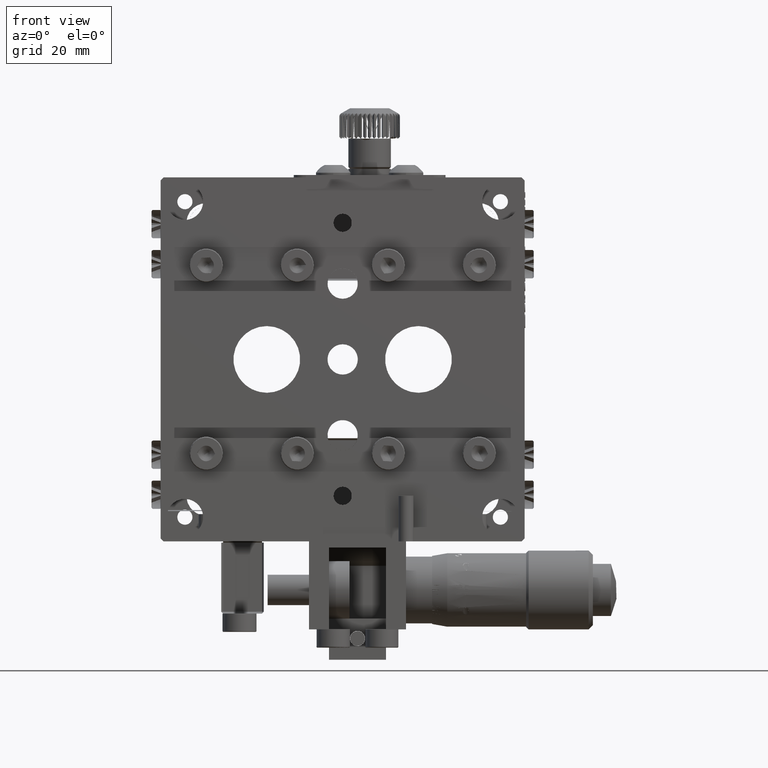
[diagram: clean part render]
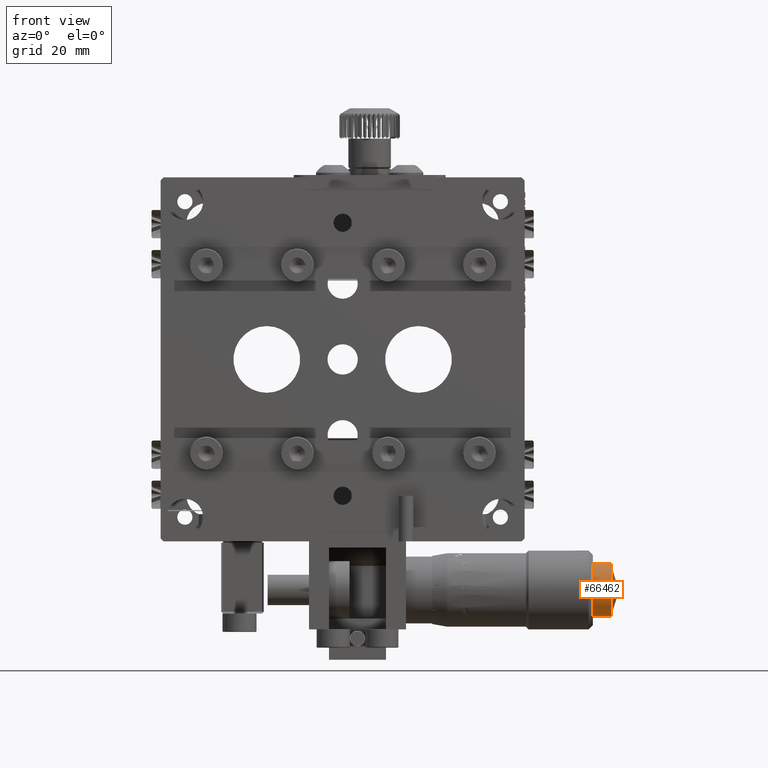
[diagram: same view with one face highlighted and labeled with its STEP entity id]
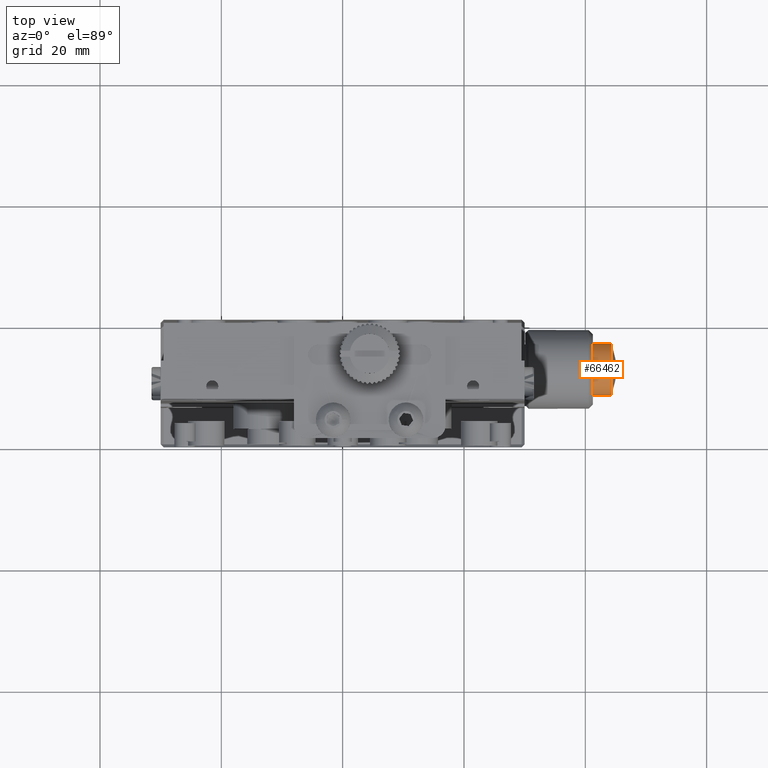
[diagram: same view with one face highlighted and labeled with its STEP entity id]
A machine part, front view. The second image highlights one B-rep face of the part: STEP entity #66462.
A second angle (top view) of the same face is appended — the face is thin or edge-on in the first view.
In plain terms, the highlighted cylindrical surface (bore or boss wall) has radius 4.3 mm, axis along (1, 0, 0).
Its self-contained STEP definition (entity closure, byte-faithful):
#124 = CARTESIAN_POINT ( 'NONE',  ( 44.22112591099850931, 10.35744726046766573, -41.43856982131278244 ) ) ;
#231 = ORIENTED_EDGE ( 'NONE', *, *, #65386, .T. ) ;
#350 = CARTESIAN_POINT ( 'NONE',  ( 41.24999999999999289, 15.04445347025360569, -41.78781594152516021 ) ) ;
#426 = B_SPLINE_CURVE_WITH_KNOTS ( 'NONE', 3,
 ( #42629, #9666, #36137, #62609, #3147, #10087, #76956, #63043, #3572, #30055, #23549, #43482, #10521, #36981, #63462, #3999, #77384, #24822, #58642, #25661, #57786, #5269, #19156, #52123, #71274, #72130, #85162, #18726, #12216, #17885, #32606, #17451, #18304, #71701, #78643, #44342, #51701, #45184, #59064, #85581, #65171, #38697, #24390, #65590, #70842, #43912, #31768, #45612, #5698, #4421, #83894, #32183, #64320, #50849, #11369, #11793, #70408, #12640 ),
 .UNSPECIFIED., .F., .F.,
 ( 4, 1, 1, 1, 2, 2, 1, 2, 2, 2, 1, 2, 2, 1, 1, 1, 2, 2, 2, 1, 1, 1, 2, 2, 1, 2, 2, 2, 1, 2, 2, 1, 1, 1, 2, 2, 4 ),
 ( 0.000000000000000000, 0.06250000000000491274, 0.09375000000000742462, 0.1093750000000084516, 0.1171875000000092287, 0.1250000000000099920, 0.1562500000000114631, 0.1718750000000122402, 0.1875000000000129896, 0.2500000000000151545, 0.2812500000000163758, 0.2968750000000168754, 0.3125000000000173750, 0.3437500000000185962, 0.3593750000000185962, 0.3671875000000185962, 0.3710937500000178746, 0.3750000000000172085, 0.5000000000000273115, 0.5625000000000316414, 0.5937500000000345279, 0.6093750000000368594, 0.6171875000000374145, 0.6250000000000378586, 0.6562500000000357492, 0.6718750000000340838, 0.6875000000000324185, 0.7500000000000246470, 0.7812500000000208722, 0.7968750000000194289, 0.8125000000000179856, 0.8437500000000154321, 0.8593750000000139888, 0.8671875000000134337, 0.8710937500000132117, 0.8750000000000128786, 1.000000000000000000 ),
 .UNSPECIFIED. ) ;
#769 = CARTESIAN_POINT ( 'NONE',  ( 41.25000000000000000, 16.94475709889264081, -39.71761870351404866 ) ) ;
#1635 = CARTESIAN_POINT ( 'NONE',  ( 41.25000000000000000, 15.60092209792028406, -34.56291542789470128 ) ) ;
#1881 = VERTEX_POINT ( 'NONE', #24337 ) ;
#2366 = ORIENTED_EDGE ( 'NONE', *, *, #78500, .T. ) ;
#3147 = CARTESIAN_POINT ( 'NONE',  ( 41.25000000000000711, 11.64079645630259918, -42.08064614067041020 ) ) ;
#3572 = CARTESIAN_POINT ( 'NONE',  ( 41.24999999999999289, 11.28238129684543978, -41.94475709912777006 ) ) ;
#3999 = CARTESIAN_POINT ( 'NONE',  ( 41.24999999999999289, 9.854710437254089683, -40.93588473557072405 ) ) ;
#4378 = CARTESIAN_POINT ( 'NONE',  ( 44.22112591099850931, 8.699996999999925151, -38.00000000000000711 ) ) ;
#4421 = CARTESIAN_POINT ( 'NONE',  ( 41.24999999999999289, 10.95554652972295173, -34.21218405848586741 ) ) ;
#4569 = CARTESIAN_POINT ( 'NONE',  ( 41.24999999999999289, 13.00000000000000888, -42.30000300000010327 ) ) ;
#4810 = CARTESIAN_POINT ( 'NONE',  ( 44.22112591099850931, 8.699996999999928704, -37.43713092353274874 ) ) ;
#5269 = CARTESIAN_POINT ( 'NONE',  ( 41.25000000000000000, 9.212184089970296696, -40.04445351840098510 ) ) ;
#5698 = CARTESIAN_POINT ( 'NONE',  ( 41.24999999999999289, 10.76829682320620662, -34.32157017765944573 ) ) ;
#6668 = CARTESIAN_POINT ( 'NONE',  ( 44.22112591099850931, 13.00000000000000888, -42.30000300000010327 ) ) ;
#6873 = CARTESIAN_POINT ( 'NONE',  ( 41.24999999999999289, 16.43708457209906371, -40.60092209792756535 ) ) ;
#7291 = CARTESIAN_POINT ( 'NONE',  ( 41.25000000000000000, 17.08069688642026307, -39.35907527924214833 ) ) ;
#7717 = CARTESIAN_POINT ( 'NONE',  ( 41.25000000000000000, 16.85487940077377544, -39.91500086782239975 ) ) ;
#8156 = CARTESIAN_POINT ( 'NONE',  ( 41.24999999999999289, 14.54910576846344483, -33.98857366986610629 ) ) ;
#8331 = EDGE_LOOP ( 'NONE', ( #2366, #231, #71102, #28490 ) ) ;
#8583 = CARTESIAN_POINT ( 'NONE',  ( 41.25000000000000000, 17.02287463318145555, -39.51910175636555778 ) ) ;
#9666 = CARTESIAN_POINT ( 'NONE',  ( 41.25000000000000000, 12.72676656590774691, -42.30000300000010327 ) ) ;
#10087 = CARTESIAN_POINT ( 'NONE',  ( 41.24999999999998579, 11.54474475924240018, -42.04644534002223111 ) ) ;
#10521 = CARTESIAN_POINT ( 'NONE',  ( 41.24999999999999289, 10.70897604800254577, -41.63958286851047319 ) ) ;
#11369 = CARTESIAN_POINT ( 'NONE',  ( 41.24999999999998579, 11.40131590361122527, -34.00819731848459071 ) ) ;
#11789 = CARTESIAN_POINT ( 'NONE',  ( 44.22112591099850931, 16.43856982131278244, -40.64255273953235559 ) ) ;
#11793 = CARTESIAN_POINT ( 'NONE',  ( 41.24999999999998579, 11.92521535623813556, -33.80063383868879612 ) ) ;
#12212 = CARTESIAN_POINT ( 'NONE',  ( 44.22112591099850931, 16.75728409128255336, -40.16556312645185756 ) ) ;
#12216 = CARTESIAN_POINT ( 'NONE',  ( 41.24999999999999289, 8.700129560329772360, -38.54613181000404154 ) ) ;
#12640 = CARTESIAN_POINT ( 'NONE',  ( 41.24999999999999289, 13.00000000000000888, -33.69999699999993226 ) ) ;
#12976 = CARTESIAN_POINT ( 'NONE',  ( 41.24999999999999289, 14.13353547290549983, -33.84780735682424080 ) ) ;
#13400 = CARTESIAN_POINT ( 'NONE',  ( 41.24999999999999289, 16.14528956274296334, -35.06411526442438742 ) ) ;
#13826 = CARTESIAN_POINT ( 'NONE',  ( 41.24999999999998579, 16.67842980434533473, -35.76829679570089837 ) ) ;
#14247 = CARTESIAN_POINT ( 'NONE',  ( 41.24999999999999289, 16.42891601246495981, -35.40417546215821432 ) ) ;
#14677 = CARTESIAN_POINT ( 'NONE',  ( 41.24999999999998579, 16.99180683453524665, -36.40132638811662957 ) ) ;
#15115 = CARTESIAN_POINT ( 'NONE',  ( 41.25000000000000000, 16.29365101558377305, -35.22856738546423117 ) ) ;
#17406 = CARTESIAN_POINT ( 'NONE',  ( 44.22112591099850931, 12.43713092353274519, -33.69999699999993936 ) ) ;
#17451 = CARTESIAN_POINT ( 'NONE',  ( 41.24999999999998579, 8.847720364107818369, -36.86668440901974719 ) ) ;
#17885 = CARTESIAN_POINT ( 'NONE',  ( 41.24999999999999289, 8.699930719834997106, -37.72693409499765238 ) ) ;
#18304 = CARTESIAN_POINT ( 'NONE',  ( 41.24999999999999289, 8.919303113578417097, -36.64092472076200124 ) ) ;
#18726 = CARTESIAN_POINT ( 'NONE',  ( 41.24999999999998579, 8.800766735328172885, -39.07512014793156396 ) ) ;
#19156 = CARTESIAN_POINT ( 'NONE',  ( 41.25000000000000000, 9.101426093932975192, -39.81672209055708578 ) ) ;
#19675 = CARTESIAN_POINT ( 'NONE',  ( 44.22112591099851642, 11.87448331201142615, -42.18808543159188673 ) ) ;
#19908 = CARTESIAN_POINT ( 'NONE',  ( 41.25000000000000000, 15.47627338545632369, -41.51618235350504449 ) ) ;
#20001 = CARTESIAN_POINT ( 'NONE',  ( 44.22112591099850931, 17.30000300000008906, -38.56286907646727968 ) ) ;
#20328 = CARTESIAN_POINT ( 'NONE',  ( 41.25000000000000000, 16.97076247596865528, -36.34975195794117298 ) ) ;
#20779 = EDGE_CURVE ( 'NONE', #80279, #47230, #37412, .T. ) ;
#21186 = CARTESIAN_POINT ( 'NONE',  ( 41.24999999999998579, 16.24991437011523843, -40.83110471578395817 ) ) ;
#21619 = CARTESIAN_POINT ( 'NONE',  ( 41.24999999999999289, 15.41365378338774939, -41.55940990266691415 ) ) ;
#23549 = CARTESIAN_POINT ( 'NONE',  ( 41.25000000000001421, 10.89486700515655215, -41.75018977214149629 ) ) ;
#23555 = CARTESIAN_POINT ( 'NONE',  ( 44.22112591099850931, 13.00000000000000888, -33.69999699999993226 ) ) ;
#23680 = CARTESIAN_POINT ( 'NONE',  ( 44.22112591099850931, 17.30000300000008906, -37.43713092353274874 ) ) ;
#24337 = CARTESIAN_POINT ( 'NONE',  ( 44.22112591099850931, 8.699996999999925151, -38.00000000000000711 ) ) ;
#24390 = CARTESIAN_POINT ( 'NONE',  ( 41.24999999999998579, 9.750085629885420602, -35.16889528421059907 ) ) ;
#24822 = CARTESIAN_POINT ( 'NONE',  ( 41.25000000000000711, 9.571083987531006088, -40.59582453783505684 ) ) ;
#25081 = DIRECTION ( 'NONE',  ( 0.000000000000000000, 0.000000000000000000, -1.000000000000000000 ) ) ;
#25661 = CARTESIAN_POINT ( 'NONE',  ( 41.24999999999999289, 9.440590088334406715, -40.41365376963137379 ) ) ;
#26849 = CARTESIAN_POINT ( 'NONE',  ( 41.24999999999997868, 14.91500086718075480, -34.14512059880832595 ) ) ;
#27262 = CARTESIAN_POINT ( 'NONE',  ( 41.25000000000000000, 17.29987043967380345, -37.45386818998489531 ) ) ;
#27705 = CARTESIAN_POINT ( 'NONE',  ( 41.24999999999998579, 14.61661099082351178, -41.98457801223268149 ) ) ;
#28135 = CARTESIAN_POINT ( 'NONE',  ( 41.24999999999999289, 15.77143261453661438, -41.29365101558211393 ) ) ;
#28490 = ORIENTED_EDGE ( 'NONE', *, *, #78904, .T. ) ;
#30011 = CARTESIAN_POINT ( 'NONE',  ( 44.22112591099852352, 10.35744726046766573, -34.56143017868723888 ) ) ;
#30055 = CARTESIAN_POINT ( 'NONE',  ( 41.24999999999999289, 11.08499913280656557, -41.85487940118521522 ) ) ;
#31344 = CARTESIAN_POINT ( 'NONE',  ( 44.22112591099850931, 17.30000300000009261, -38.00000000000000711 ) ) ;
#31433 = CARTESIAN_POINT ( 'NONE',  ( 44.22112591099850931, 12.43713092353274341, -42.30000300000009616 ) ) ;
#31471 = CARTESIAN_POINT ( 'NONE',  ( 44.22112591099850931, 13.00000000000000888, -33.69999699999993226 ) ) ;
#31606 = FACE_OUTER_BOUND ( 'NONE', #36798, .T. ) ;
#31768 = CARTESIAN_POINT ( 'NONE',  ( 41.24999999999998579, 10.52372661454347025, -34.48381764649735715 ) ) ;
#31806 = VERTEX_POINT ( 'NONE', #78062 ) ;
#31979 = B_SPLINE_CURVE_WITH_KNOTS ( 'NONE', 3,
 ( #45179, #20001, #71697, #12212, #11789, #38262, #45607, #46449, #72969, #32179 ),
 .UNSPECIFIED., .F., .F.,
 ( 4, 2, 2, 2, 4 ),
 ( 0.000000000000000000, 0.2500000000000000000, 0.5000000000000000000, 0.7500000000000000000, 1.000000000000000000 ),
 .UNSPECIFIED. ) ;
#32179 = CARTESIAN_POINT ( 'NONE',  ( 44.22112591099850931, 13.00000000000000888, -42.30000300000010327 ) ) ;
#32183 = CARTESIAN_POINT ( 'NONE',  ( 41.24999999999998579, 11.29946200966149839, -34.05026186395396337 ) ) ;
#32461 = DIRECTION ( 'NONE',  ( 1.000000000000000000, 0.000000000000000000, 0.000000000000000000 ) ) ;
#32606 = CARTESIAN_POINT ( 'NONE',  ( 41.24999999999999289, 8.737619824219651221, -37.32428362182101012 ) ) ;
#32926 = CARTESIAN_POINT ( 'NONE',  ( 41.24999999999999289, 13.67600955407944419, -33.73773581450826242 ) ) ;
#33297 = FACE_OUTER_BOUND ( 'NONE', #8331, .T. ) ;
#33347 = CARTESIAN_POINT ( 'NONE',  ( 41.24999999999999289, 15.23170317678041918, -41.67842982234685678 ) ) ;
#34196 = CARTESIAN_POINT ( 'NONE',  ( 41.25000000000000000, 15.29102395200172992, -34.36041713149285926 ) ) ;
#34293 = EDGE_CURVE ( 'NONE', #47087, #31806, #426, .T. ) ;
#34637 = CARTESIAN_POINT ( 'NONE',  ( 41.25000000000000000, 16.51618235350581898, -35.52372661454405289 ) ) ;
#35066 = CARTESIAN_POINT ( 'NONE',  ( 41.24999999999998579, 15.83110471578181411, -34.75008562988362115 ) ) ;
#36137 = CARTESIAN_POINT ( 'NONE',  ( 41.24999999999999289, 12.32399044591351966, -42.26226418549177311 ) ) ;
#36514 = CARTESIAN_POINT ( 'NONE',  ( 44.22112591099851642, 8.811914568408143467, -36.87448331201143503 ) ) ;
#36698 = CARTESIAN_POINT ( 'NONE',  ( 44.22112591099850931, 15.16556312645185578, -34.24271590871747151 ) ) ;
#36798 = EDGE_LOOP ( 'NONE', ( #53794, #82821 ) ) ;
#36981 = CARTESIAN_POINT ( 'NONE',  ( 41.24999999999999289, 10.39907790206236626, -41.43708457209189078 ) ) ;
#37412 = B_SPLINE_CURVE_WITH_KNOTS ( 'NONE', 3,
 ( #31471, #42769, #44476, #36698, #82326, #83180, #57501, #43190, #23680, #83608 ),
 .UNSPECIFIED., .F., .F.,
 ( 4, 2, 2, 2, 4 ),
 ( 0.000000000000000000, 0.2500000000000000000, 0.5000000000000000000, 0.7500000000000000000, 1.000000000000000000 ),
 .UNSPECIFIED. ) ;
#38262 = CARTESIAN_POINT ( 'NONE',  ( 44.22112591099852352, 15.64255273953234848, -41.43856982131276823 ) ) ;
#38534 = CARTESIAN_POINT ( 'NONE',  ( 45.25000000000000000, 13.00000000000000888, -38.00000000000001421 ) ) ;
#38697 = CARTESIAN_POINT ( 'NONE',  ( 41.25000000000000000, 9.562915427898902365, -35.39907790206962801 ) ) ;
#39863 = CARTESIAN_POINT ( 'NONE',  ( 41.25000000000000000, 14.35920354369427621, -33.91935385932960401 ) ) ;
#40283 = CARTESIAN_POINT ( 'NONE',  ( 41.24999999999999289, 16.67710514566190838, -40.23027662772715018 ) ) ;
#41134 = CARTESIAN_POINT ( 'NONE',  ( 41.25000000000000000, 17.15227963588988302, -39.13331559098741508 ) ) ;
#41575 = CARTESIAN_POINT ( 'NONE',  ( 41.25000000000000000, 17.26238017577725259, -38.67571637818853958 ) ) ;
#42629 = CARTESIAN_POINT ( 'NONE',  ( 41.24999999999999289, 13.00000000000000888, -42.30000300000010327 ) ) ;
#42769 = CARTESIAN_POINT ( 'NONE',  ( 44.22112591099850931, 13.56286907646726902, -33.69999699999993936 ) ) ;
#43012 = CARTESIAN_POINT ( 'NONE',  ( 44.22112591099850931, 10.83443687354816198, -34.24271590871747861 ) ) ;
#43190 = CARTESIAN_POINT ( 'NONE',  ( 44.22112591099852352, 17.18808543159187607, -36.87448331201144924 ) ) ;
#43482 = CARTESIAN_POINT ( 'NONE',  ( 41.24999999999999289, 10.76972337258738754, -41.67710514586766379 ) ) ;
#43862 = CARTESIAN_POINT ( 'NONE',  ( 44.22112591099850931, 13.00000000000000888, -33.69999699999993226 ) ) ;
#43912 = CARTESIAN_POINT ( 'NONE',  ( 41.24999999999997868, 10.40417546215723910, -34.57108398754007084 ) ) ;
#44342 = CARTESIAN_POINT ( 'NONE',  ( 41.24999999999998579, 8.988573669807387034, -36.45089423162583842 ) ) ;
#44440 = CARTESIAN_POINT ( 'NONE',  ( 44.22112591099850931, 13.00000000000000888, -42.30000300000010327 ) ) ;
#44476 = CARTESIAN_POINT ( 'NONE',  ( 44.22112591099851642, 14.12551668798859339, -33.81191456840815590 ) ) ;
#45179 = CARTESIAN_POINT ( 'NONE',  ( 44.22112591099850931, 17.30000300000009261, -38.00000000000000711 ) ) ;
#45184 = CARTESIAN_POINT ( 'NONE',  ( 41.24999999999999289, 9.145120599220224022, -36.08499913219196031 ) ) ;
#45279 = CARTESIAN_POINT ( 'NONE',  ( 44.22112591099852352, 8.811914568408143467, -39.12551668798858628 ) ) ;
#45296 = EDGE_CURVE ( 'NONE', #31806, #47087, #73812, .T. ) ;
#45607 = CARTESIAN_POINT ( 'NONE',  ( 44.22112591099850931, 15.16556312645185578, -41.75728409128254981 ) ) ;
#45612 = CARTESIAN_POINT ( 'NONE',  ( 41.24999999999998579, 10.58634621661900255, -34.44059009732993815 ) ) ;
#45709 = CARTESIAN_POINT ( 'NONE',  ( 44.22112591099850931, 9.242715908717464401, -40.16556312645185756 ) ) ;
#45931 = CARTESIAN_POINT ( 'NONE',  ( 41.24999999999999289, 13.00000000000000888, -33.69999699999993226 ) ) ;
#46156 = VERTEX_POINT ( 'NONE', #6668 ) ;
#46357 = CARTESIAN_POINT ( 'NONE',  ( 41.24999999999999289, 16.98457800787292626, -36.38338900251176256 ) ) ;
#46449 = CARTESIAN_POINT ( 'NONE',  ( 44.22112591099852352, 14.12551668798858806, -42.18808543159187963 ) ) ;
#46776 = CARTESIAN_POINT ( 'NONE',  ( 41.24999999999999289, 14.70053799032827513, -41.94973813605088253 ) ) ;
#47087 = VERTEX_POINT ( 'NONE', #4569 ) ;
#47204 = CARTESIAN_POINT ( 'NONE',  ( 41.24999999999999289, 16.55940991166753662, -35.58634623037141864 ) ) ;
#47230 = VERTEX_POINT ( 'NONE', #31344 ) ;
#47642 = CARTESIAN_POINT ( 'NONE',  ( 41.25000000000000000, 14.51914232981453523, -33.97714141904550900 ) ) ;
#48070 = CARTESIAN_POINT ( 'NONE',  ( 41.24999999999999289, 14.59868409638912112, -41.99180268151541640 ) ) ;
#50849 = CARTESIAN_POINT ( 'NONE',  ( 41.25000000000000000, 11.38338900917328900, -34.01542198776883907 ) ) ;
#51125 = AXIS2_PLACEMENT_3D ( 'NONE', #38534, #32461, #25081 ) ;
#51701 = CARTESIAN_POINT ( 'NONE',  ( 41.24999999999999289, 9.055242901103957465, -36.28238129649412969 ) ) ;
#52123 = CARTESIAN_POINT ( 'NONE',  ( 41.24999999999999289, 9.050261877728388527, -39.70053801139273730 ) ) ;
#52876 = CARTESIAN_POINT ( 'NONE',  ( 41.24999999999998579, 16.63958286850861512, -40.29102395200010989 ) ) ;
#53077 = CARTESIAN_POINT ( 'NONE',  ( 44.22112591099852352, 9.561430178687238879, -40.64255273953234138 ) ) ;
#53305 = CARTESIAN_POINT ( 'NONE',  ( 41.24999999999999289, 17.30006928016324608, -38.27306590500776196 ) ) ;
#53794 = ORIENTED_EDGE ( 'NONE', *, *, #45296, .F. ) ;
#54156 = CARTESIAN_POINT ( 'NONE',  ( 41.24999999999998579, 14.65024802937441173, -41.97076248426621703 ) ) ;
#54604 = CARTESIAN_POINT ( 'NONE',  ( 41.24999999999997868, 17.04647589103485927, -39.45517802032031796 ) ) ;
#57501 = CARTESIAN_POINT ( 'NONE',  ( 44.22112591099850931, 16.75728409128255691, -35.83443687354817087 ) ) ;
#57786 = CARTESIAN_POINT ( 'NONE',  ( 41.25000000000000711, 9.321570195650547674, -40.23170320429321123 ) ) ;
#58642 = CARTESIAN_POINT ( 'NONE',  ( 41.25000000000000000, 9.483817646491578657, -40.47627338545163411 ) ) ;
#59064 = CARTESIAN_POINT ( 'NONE',  ( 41.25000000000000000, 9.249810228177084426, -35.89486700467362112 ) ) ;
#59816 = CARTESIAN_POINT ( 'NONE',  ( 41.25000000000000711, 14.45525524075570090, -33.95355465997779021 ) ) ;
#61107 = CARTESIAN_POINT ( 'NONE',  ( 41.24999999999998579, 17.01142633019352601, -39.54910576837205127 ) ) ;
#61548 = CARTESIAN_POINT ( 'NONE',  ( 41.24999999999999289, 13.00000000000000888, -42.30000300000010327 ) ) ;
#62609 = CARTESIAN_POINT ( 'NONE',  ( 41.24999999999999289, 11.86646452708919242, -42.15219264317578052 ) ) ;
#62993 = CARTESIAN_POINT ( 'NONE',  ( 44.22112591099850931, 9.242715908717462625, -35.83443687354816376 ) ) ;
#63043 = CARTESIAN_POINT ( 'NONE',  ( 41.25000000000000711, 11.45089423153829777, -42.01142633013483874 ) ) ;
#63462 = CARTESIAN_POINT ( 'NONE',  ( 41.25000000000000711, 10.16889528422392708, -41.24991437012601381 ) ) ;
#64320 = CARTESIAN_POINT ( 'NONE',  ( 41.24999999999999289, 11.34975197061945629, -34.02923751573668198 ) ) ;
#65171 = CARTESIAN_POINT ( 'NONE',  ( 41.24999999999999289, 9.360417131491946208, -35.70897604800056513 ) ) ;
#65386 = EDGE_CURVE ( 'NONE', #1881, #80279, #79041, .T. ) ;
#65590 = CARTESIAN_POINT ( 'NONE',  ( 41.25000000000000711, 10.06411526442371773, -34.85471043726067109 ) ) ;
#66104 = CARTESIAN_POINT ( 'NONE',  ( 44.22112591099850931, 10.83443687354815488, -41.75728409128254270 ) ) ;
#66332 = CARTESIAN_POINT ( 'NONE',  ( 41.25000000000000000, 17.19923326467539226, -36.92487985206073375 ) ) ;
#66462 = ADVANCED_FACE ( 'NONE', ( #31606, #33297 ), #78923, .T. ) ;
#66756 = CARTESIAN_POINT ( 'NONE',  ( 41.24999999999999289, 15.93588473557604601, -41.14528956274207872 ) ) ;
#67186 = CARTESIAN_POINT ( 'NONE',  ( 41.24999999999998579, 16.89857390606165666, -36.18327790943521194 ) ) ;
#67619 = CARTESIAN_POINT ( 'NONE',  ( 41.25000000000000711, 15.23027662740626198, -34.32289485412911034 ) ) ;
#68064 = CARTESIAN_POINT ( 'NONE',  ( 41.25000000000000000, 13.54718185861916524, -42.30000300000010327 ) ) ;
#69936 = CARTESIAN_POINT ( 'NONE',  ( 44.22112591099850931, 9.561430178687242432, -35.35744726046767283 ) ) ;
#70408 = CARTESIAN_POINT ( 'NONE',  ( 41.24999999999998579, 12.45281814137149823, -33.69999699999992515 ) ) ;
#70842 = CARTESIAN_POINT ( 'NONE',  ( 41.24999999999999289, 10.22856738546292732, -34.70634898442266802 ) ) ;
#71102 = ORIENTED_EDGE ( 'NONE', *, *, #20779, .T. ) ;
#71233 = CARTESIAN_POINT ( 'NONE',  ( 44.22112591099852352, 11.87448331201142970, -33.81191456840815590 ) ) ;
#71274 = CARTESIAN_POINT ( 'NONE',  ( 41.25000000000000000, 9.029237524029440465, -39.65024804205607012 ) ) ;
#71697 = CARTESIAN_POINT ( 'NONE',  ( 44.22112591099851642, 17.18808543159187607, -39.12551668798859339 ) ) ;
#71701 = CARTESIAN_POINT ( 'NONE',  ( 41.25000000000000000, 8.953524108964362682, -36.54482197968215473 ) ) ;
#72130 = CARTESIAN_POINT ( 'NONE',  ( 41.25000000000000711, 9.015421992126048778, -39.61661099748673820 ) ) ;
#72220 = CARTESIAN_POINT ( 'NONE',  ( 44.22112591099850931, 8.699996999999930480, -38.56286907646727968 ) ) ;
#72459 = CARTESIAN_POINT ( 'NONE',  ( 41.25000000000000711, 13.27323343408824741, -33.69999699999993936 ) ) ;
#72969 = CARTESIAN_POINT ( 'NONE',  ( 44.22112591099850931, 13.56286907646727258, -42.30000300000009616 ) ) ;
#73302 = CARTESIAN_POINT ( 'NONE',  ( 41.24999999999999289, 14.81672205444656676, -41.89857392968860950 ) ) ;
#73726 = CARTESIAN_POINT ( 'NONE',  ( 41.25000000000000000, 15.10513299483348781, -34.24981022785342333 ) ) ;
#73812 = B_SPLINE_CURVE_WITH_KNOTS ( 'NONE', 3,
 ( #45931, #72459, #32926, #12976, #39863, #59816, #47642, #8156, #74158, #26849, #73726, #67619, #34196, #1635, #35066, #13400, #15115, #14247, #34637, #47204, #13826, #79817, #67186, #79399, #20328, #46357, #14677, #66332, #27262, #53305, #41575, #41134, #7291, #54604, #8583, #61107, #769, #7717, #80239, #40283, #52876, #6873, #21186, #66756, #28135, #81110, #19908, #21619, #33347, #350, #73302, #46776, #54156, #27705, #48070, #74595, #68064, #61548 ),
 .UNSPECIFIED., .F., .F.,
 ( 4, 1, 1, 1, 2, 2, 1, 2, 2, 2, 1, 2, 2, 1, 1, 1, 2, 2, 2, 1, 1, 1, 2, 2, 1, 2, 2, 2, 1, 2, 2, 1, 1, 1, 2, 2, 4 ),
 ( 0.000000000000000000, 0.06250000000001984524, 0.09375000000002976785, 0.1093750000000345279, 0.1171875000000366512, 0.1250000000000387745, 0.1562500000000456579, 0.1718750000000489331, 0.1875000000000522082, 0.2500000000000637823, 0.2812500000000693889, 0.2968750000000715539, 0.3125000000000737188, 0.3437500000000777156, 0.3593750000000788813, 0.3671875000000796030, 0.3710937500000798805, 0.3750000000000801026, 0.5000000000000611733, 0.5625000000000517364, 0.5937500000000477396, 0.6093750000000466294, 0.6171875000000460743, 0.6250000000000455191, 0.6562500000000415223, 0.6718750000000395239, 0.6875000000000374145, 0.7500000000000276446, 0.7812500000000232037, 0.7968750000000205391, 0.8125000000000178746, 0.8437500000000125455, 0.8593750000000098810, 0.8671875000000085487, 0.8710937500000077716, 0.8750000000000069944, 1.000000000000000000 ),
 .UNSPECIFIED. ) ;
#74158 = CARTESIAN_POINT ( 'NONE',  ( 41.25000000000000000, 14.71761870314730380, -34.05524290086854933 ) ) ;
#74595 = CARTESIAN_POINT ( 'NONE',  ( 41.24999999999999289, 14.07478464375252969, -42.19936616131123230 ) ) ;
#76956 = CARTESIAN_POINT ( 'NONE',  ( 41.24999999999998579, 11.48085767018443271, -42.02285858095451943 ) ) ;
#77384 = CARTESIAN_POINT ( 'NONE',  ( 41.25000000000000000, 9.706348984411098613, -40.77143261452725653 ) ) ;
#78062 = CARTESIAN_POINT ( 'NONE',  ( 41.24999999999999289, 13.00000000000000888, -33.69999699999993226 ) ) ;
#78500 = EDGE_CURVE ( 'NONE', #46156, #1881, #84895, .T. ) ;
#78643 = CARTESIAN_POINT ( 'NONE',  ( 41.24999999999999289, 8.977125366818155427, -36.48089824363571410 ) ) ;
#78904 = EDGE_CURVE ( 'NONE', #47230, #46156, #31979, .T. ) ;
#78923 = CYLINDRICAL_SURFACE ( 'NONE', #51125, 4.300003000000080178 ) ;
#79041 = B_SPLINE_CURVE_WITH_KNOTS ( 'NONE', 3,
 ( #4378, #4810, #36514, #62993, #69936, #30011, #43012, #71233, #17406, #43862 ),
 .UNSPECIFIED., .F., .F.,
 ( 4, 2, 2, 2, 4 ),
 ( 0.000000000000000000, 0.2500000000000000000, 0.5000000000000000000, 0.7500000000000000000, 1.000000000000000000 ),
 .UNSPECIFIED. ) ;
#79399 = CARTESIAN_POINT ( 'NONE',  ( 41.24999999999999289, 16.94973812226846377, -36.29946198860272943 ) ) ;
#79817 = CARTESIAN_POINT ( 'NONE',  ( 41.24999999999998579, 16.78781591002255169, -35.95554648158878308 ) ) ;
#80239 = CARTESIAN_POINT ( 'NONE',  ( 41.24999999999999289, 16.75018977181821356, -40.10513299533765519 ) ) ;
#80279 = VERTEX_POINT ( 'NONE', #23555 ) ;
#81110 = CARTESIAN_POINT ( 'NONE',  ( 41.24999999999999289, 15.59582453784240741, -41.42891601246368793 ) ) ;
#82326 = CARTESIAN_POINT ( 'NONE',  ( 44.22112591099850931, 15.64255273953235204, -34.56143017868724598 ) ) ;
#82821 = ORIENTED_EDGE ( 'NONE', *, *, #34293, .F. ) ;
#83180 = CARTESIAN_POINT ( 'NONE',  ( 44.22112591099852352, 16.43856982131277533, -35.35744726046767283 ) ) ;
#83608 = CARTESIAN_POINT ( 'NONE',  ( 44.22112591099850931, 17.30000300000009261, -38.00000000000000711 ) ) ;
#83894 = CARTESIAN_POINT ( 'NONE',  ( 41.24999999999999289, 11.18327794553586685, -34.10142607031965412 ) ) ;
#84895 = B_SPLINE_CURVE_WITH_KNOTS ( 'NONE', 3,
 ( #44440, #31433, #19675, #66104, #124, #53077, #45709, #45279, #72220, #85262 ),
 .UNSPECIFIED., .F., .F.,
 ( 4, 2, 2, 2, 4 ),
 ( 0.000000000000000000, 0.2500000000000000000, 0.5000000000000000000, 0.7500000000000000000, 1.000000000000000000 ),
 .UNSPECIFIED. ) ;
#85162 = CARTESIAN_POINT ( 'NONE',  ( 41.25000000000000000, 9.008193165464595253, -39.59867361188349122 ) ) ;
#85262 = CARTESIAN_POINT ( 'NONE',  ( 44.22112591099850931, 8.699996999999925151, -38.00000000000000711 ) ) ;
#85581 = CARTESIAN_POINT ( 'NONE',  ( 41.25000000000000000, 9.322894854335116221, -35.76972337228002630 ) ) ;